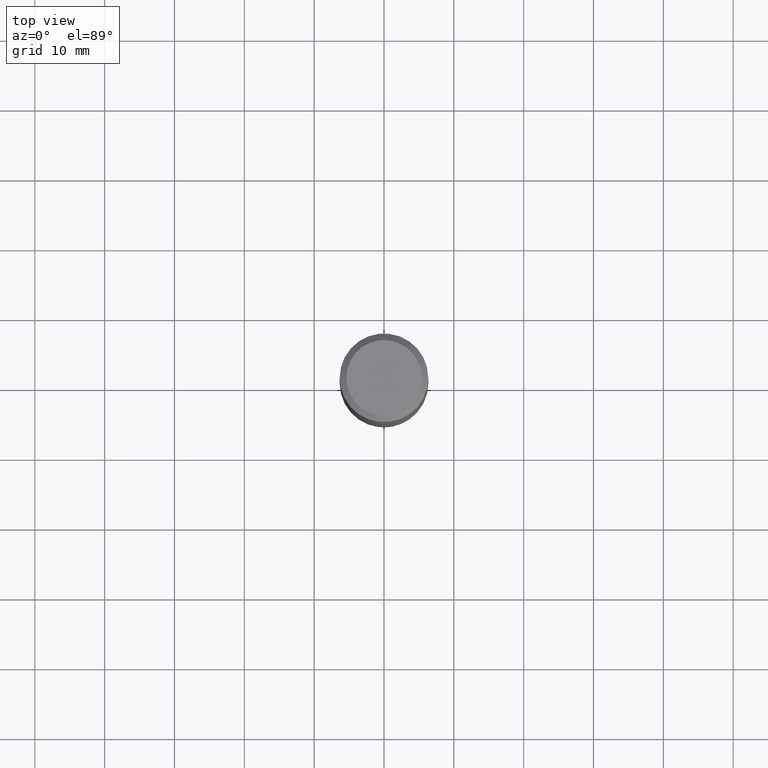
[diagram: clean part render]
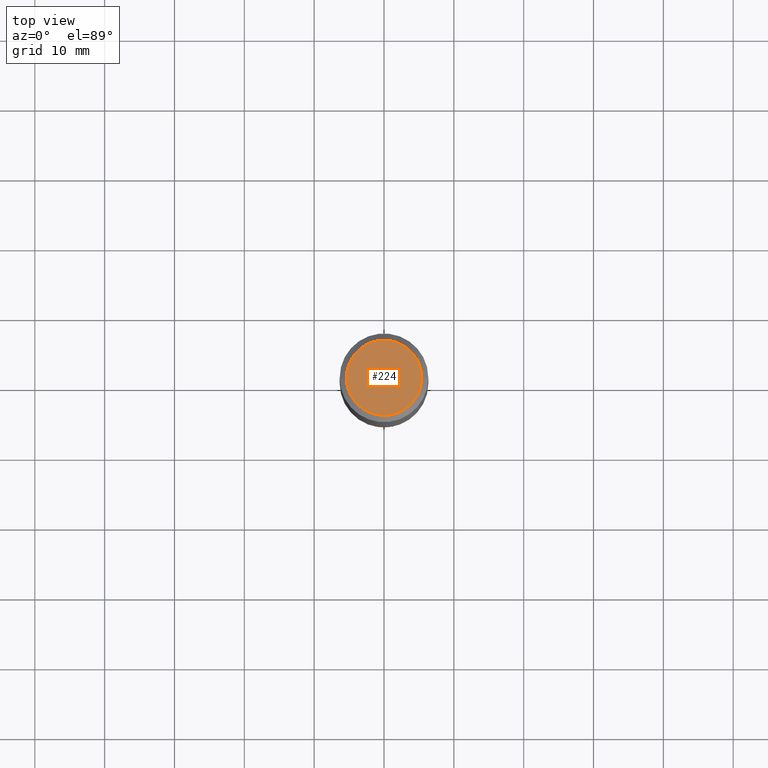
[diagram: same view with one face highlighted and labeled with its STEP entity id]
A machine part, top view. The second image highlights one B-rep face of the part: STEP entity #224.
In plain terms, the highlighted planar face has unit normal (0, -0, -1).
Its self-contained STEP definition (entity closure, byte-faithful):
#23 = CARTESIAN_POINT ( 'NONE',  ( -1.591006383764330940E-46, 2.271535455632768948E-32, 6.505936120470318766E-18 ) ) ;
#27 = DIRECTION ( 'NONE',  ( 1.000000000000000000, -6.982962677686266711E-15, 4.876376119033268190E-29 ) ) ;
#35 = CARTESIAN_POINT ( 'NONE',  ( 0.2124999999999999944, -1.651955437087975937E-15, 6.505936120481282700E-18 ) ) ;
#89 = AXIS2_PLACEMENT_3D ( 'NONE', #310, #119, #472 ) ;
#106 = EDGE_CURVE ( 'NONE', #373, #365, #488, .T. ) ;
#119 = DIRECTION ( 'NONE',  ( -2.445468806185136597E-29, 3.491481338843145583E-15, 1.000000000000000000 ) ) ;
#128 = FACE_OUTER_BOUND ( 'NONE', #221, .T. ) ;
#146 = CARTESIAN_POINT ( 'NONE',  ( -0.2124999999999999944, 1.549344844111639638E-15, 6.505936120459713055E-18 ) ) ;
#221 = EDGE_LOOP ( 'NONE', ( #418, #300 ) ) ;
#224 = ADVANCED_FACE ( 'NONE', ( #128 ), #463, .F. ) ;
#235 = AXIS2_PLACEMENT_3D ( 'NONE', #467, #348, #270 ) ;
#270 = DIRECTION ( 'NONE',  ( -1.000000000000000000, 6.982962677686265922E-15, -4.876176775795935793E-29 ) ) ;
#300 = ORIENTED_EDGE ( 'NONE', *, *, #106, .T. ) ;
#308 = AXIS2_PLACEMENT_3D ( 'NONE', #23, #359, #27 ) ;
#310 = CARTESIAN_POINT ( 'NONE',  ( -1.591006383764330940E-46, 2.271535455632768948E-32, 6.505936120470318766E-18 ) ) ;
#348 = DIRECTION ( 'NONE',  ( 2.438088387897960049E-29, -3.491481338843145188E-15, -1.000000000000000000 ) ) ;
#359 = DIRECTION ( 'NONE',  ( -2.445468806185136597E-29, 3.491481338843145583E-15, 1.000000000000000000 ) ) ;
#364 = EDGE_CURVE ( 'NONE', #365, #373, #466, .T. ) ;
#365 = VERTEX_POINT ( 'NONE', #146 ) ;
#373 = VERTEX_POINT ( 'NONE', #35 ) ;
#418 = ORIENTED_EDGE ( 'NONE', *, *, #364, .T. ) ;
#463 = PLANE ( 'NONE',  #235 ) ;
#466 = CIRCLE ( 'NONE', #308, 0.2124999999999999944 ) ;
#467 = CARTESIAN_POINT ( 'NONE',  ( -7.955031918821654702E-47, 1.135767727816384474E-32, 3.252968060235159383E-18 ) ) ;
#472 = DIRECTION ( 'NONE',  ( 1.000000000000000000, -6.982962677686266711E-15, 4.876376119033268190E-29 ) ) ;
#488 = CIRCLE ( 'NONE', #89, 0.2124999999999999944 ) ;